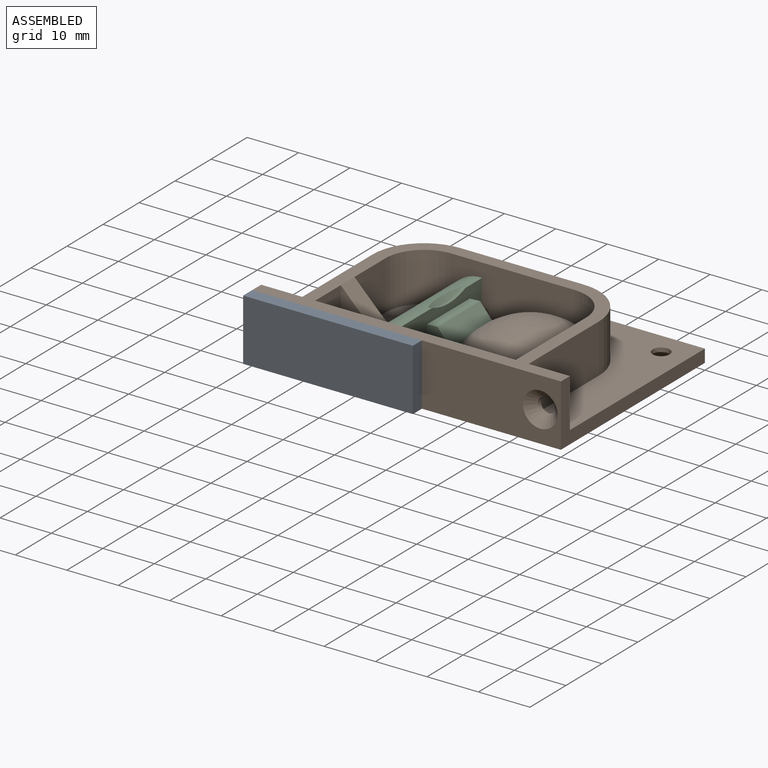
[diagram: assembled view]
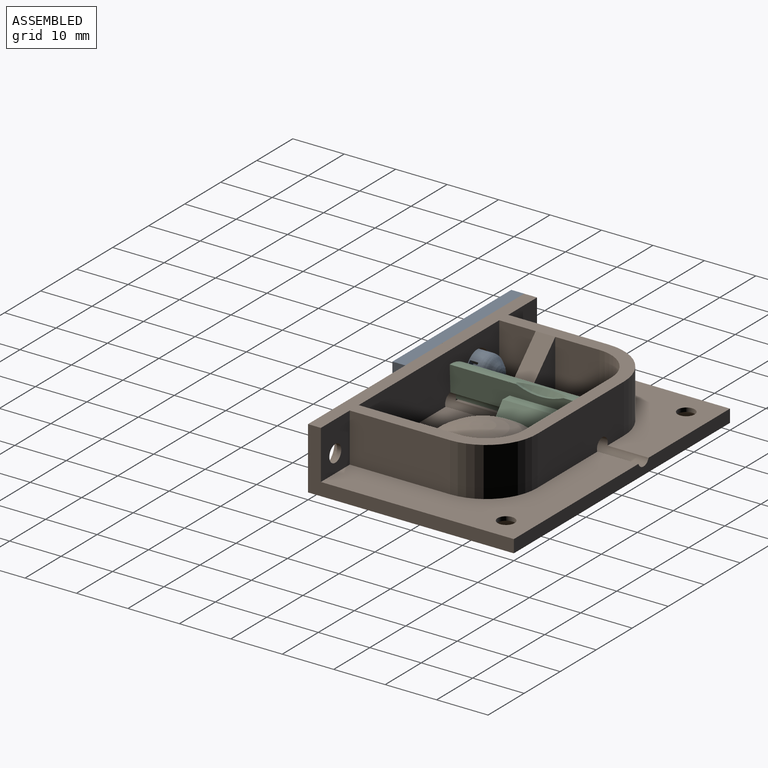
[diagram: assembled view, second angle]
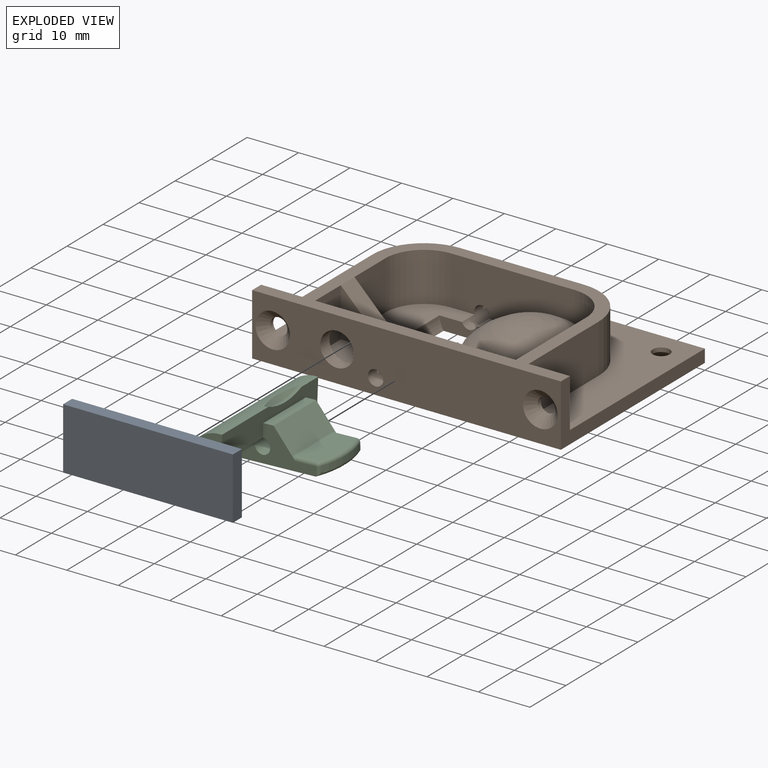
[diagram: exploded view]
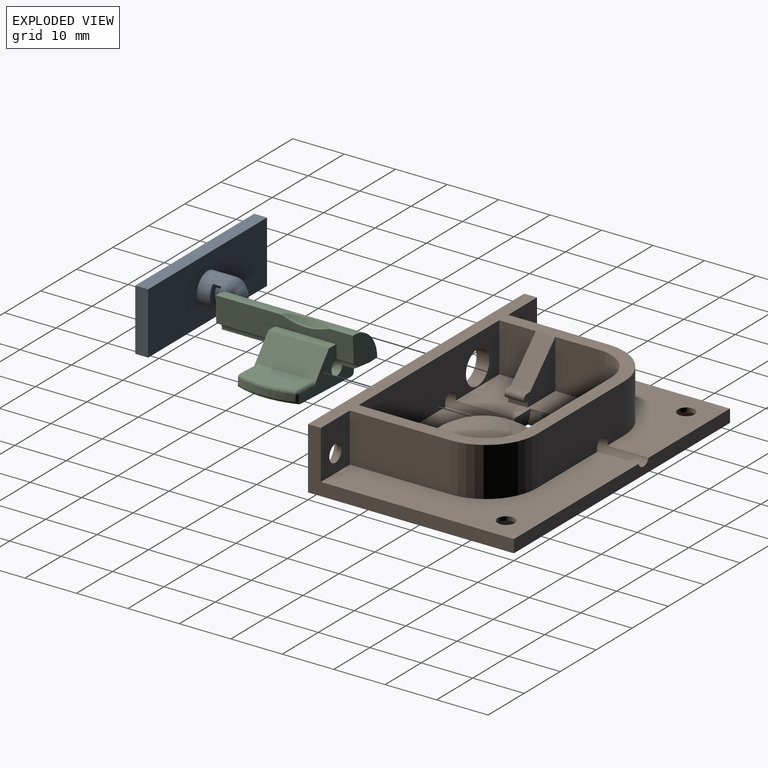
[diagram: exploded view, second angle]
ASSEMBLY  parts=3 mates=2
PART A: 16 faces, bbox 33x10x12 mm
  f0: plane 5.04x2.95mm, normal (0,1,0), area 7.2mm2, adj f8,f9,f14,f15
  f1: plane 12x2.5mm, normal (1,0,0), area 30mm2, adj f2,f4,f5,f6
  f2: plane 33x2.5mm, normal (0,0,1), area 82.5mm2, adj f1,f3,f5,f6
  f3: plane 12x2.5mm, normal (-1,0,0), area 30mm2, adj f2,f4,f5,f6
  f4: plane 33x2.5mm, normal (0,0,-1), area 82.5mm2, adj f1,f3,f5,f6
  f5: plane 33x12mm, normal (0,1,0), area 396mm2, adj f1,f2,f3,f4
  f6: plane 33x12mm, normal (0,-1,0), area 368.7mm2, adj f1,f2,f3,f4,f9
  f7: plane 5.04x2.95mm, normal (0,-1,0), area 7.2mm2, adj f8,f9,f14,f15
  f8: cylinder r=1.6mm len=2.73mm, axis (0,1,0), area 6mm2, adj f0,f7,f14,f15
  f9: cylinder r=2.95mm len=5.9mm, axis (0,1,0), area 73.8mm2, adj f0,f6,f7,f12,f14,f15
  f10: cone r=2.95mm half-angle=42.2deg, axis (0,1,0), area 15.7mm2, adj f12,f13
  f11: plane 0.23x0.23mm, normal (0,-1,0), area 0mm2, adj f13
  f12: torus R=0.95mm, axis (0,-1,0), area 25.7mm2, adj f9,f10
  f13: torus R=0.11mm, axis (0,1,0), area 9.4mm2, adj f10,f11
  f14: plane 1.6x0.95mm, normal (-0.71,0,-0.71), area 2.2mm2, adj f0,f7,f8,f9
  f15: plane 1.6x1.35mm, normal (-1,0,0), area 2.2mm2, adj f0,f7,f8,f9
PART B: 52 faces, bbox 60.1x40.1x12.1 mm
  f0: sphere r=12mm, area 330.4mm2, adj f23,f24,f25,f41,f50
  f1: plane 9.5x8.6mm, normal (1,0,0), area 81.7mm2, adj f2,f10,f35,f37
  f2: plane 27x12.09mm, normal (0,0,1), area 232.3mm2, adj f1,f18,f20,f21,f24,f25,f26,f27
  f3: plane 60x2.5mm, normal (0,1,0), area 147.9mm2, adj f4,f5,f8,f9,f12,f27
  f4: plane 37.5x34.59mm, normal (0,0,1), area 525.6mm2, adj f3,f9,f13,f14,f17,f27,f39,f44
  f5: plane 37.5x22.59mm, normal (0,0,1), area 429.6mm2, adj f3,f8,f15,f16,f17,f27,f38,f42
  f6: plane 6.42x3.5mm, normal (0,0,1), area 16.9mm2, adj f18,f22,f24,f27
  f7: plane 24.09x11.5mm, normal (0,0,1), area 176.5mm2, adj f19,f20,f22,f25,f26
  f8: plane 40x12mm, normal (-1,0,0), area 123.8mm2, adj f3,f5,f10,f11,f12,f15
  f9: plane 40x12mm, normal (1,0,0), area 123.8mm2, adj f3,f4,f10,f11,f12,f14
  f10: plane 60x32mm, normal (0,0,1), area 376.2mm2, adj f1,f8,f9,f11,f13,f14,f15,f16
  f11: plane 60x12mm, normal (0,-1,0), area 608.8mm2, adj f8,f9,f10,f12,f26,f28,f47,f49
  f12: plane 60x40mm, normal (0,0,-1), area 1796.1mm2, adj f3,f8,f9,f11,f24,f25,f29,f41
  f13: plane 19.5x9.5mm, normal (1,0,0), area 185.2mm2, adj f4,f10,f14,f39
  f14: plane 9.5x8mm, normal (0,1,0), area 67.4mm2, adj f4,f9,f10,f13,f46
  f15: plane 9.5x8mm, normal (0,1,0), area 67.4mm2, adj f5,f8,f10,f16,f48
  f16: plane 19.5x9.5mm, normal (-1,0,0), area 185.2mm2, adj f5,f10,f15,f38
  f17: plane 24x9.5mm, normal (0,1,0), area 223mm2, adj f4,f5,f10,f27,f38,f39
  f18: plane 24x9.5mm, normal (0,-1,0), area 195.1mm2, adj f2,f6,f10,f22,f27,f36,f37
  f19: plane 19.5x9.5mm, normal (-1,0,0), area 157.4mm2, adj f7,f10,f20,f22,f36
  f20: plane 39x9.5mm, normal (0,1,0), area 332.3mm2, adj f2,f7,f10,f19,f21,f26,f28
  f21: plane 9.5x7.1mm, normal (1,0,0), area 67.4mm2, adj f2,f10,f20,f34
  f22: sphere r=14.5mm, area 492.4mm2, adj f6,f7,f18,f19,f24,f25,f36,f40
  f23: plane 12x3.11mm, normal (0,0,-1), area 11.5mm2, adj f0,f24,f25,f40
  f24: plane 14.88x4.79mm, normal (0,-1,0), area 34.6mm2, adj f0,f2,f6,f12,f22,f23,f27,f29
  f25: plane 14.88x4.79mm, normal (0,1,0), area 34.6mm2, adj f0,f2,f7,f12,f22,f23,f26,f29
  f26: cylinder r=1.5mm len=14mm, axis (0,1,0), area 66mm2, adj f2,f7,f11,f20,f25
  f27: cylinder r=1.5mm len=14mm, axis (0,1,0), area 66mm2, adj f2,f3,f4,f5,f6,f17,f18,f24
  f28: cylinder r=3.25mm len=6.5mm, axis (0,-1,0), area 51.1mm2, adj f11,f20
  f29: cylinder r=5.83mm len=12mm, axis (0,-1,0), area 31.8mm2, adj f2,f12,f24,f25
  f30: cylinder r=5.83mm len=3.8mm, axis (0,1,0), area 4mm2, adj f2,f31,f34,f35
  f31: cylinder r=0.75mm len=3.8mm, axis (0,1,0), area 10mm2, adj f30,f32,f34,f35
  f32: plane 3.8x0.97mm, normal (0,0,1), area 3.7mm2, adj f31,f33,f34,f35
  f33: plane 7x7mm, normal (0.71,0,0.71), area 37.6mm2, adj f10,f32,f34,f35
  f34: plane 9.5x8.72mm, normal (0,-1,0), area 45mm2, adj f2,f21,f30,f31,f32,f33
  f35: plane 9.5x8.72mm, normal (0,1,0), area 45mm2, adj f1,f2,f30,f31,f32,f33
  f36: cylinder r=7.5mm len=7.5mm, axis (0,0,-1), area 75.6mm2, adj f10,f18,f19,f22
  f37: cylinder r=7.5mm len=9.5mm, axis (0,0,1), area 111.9mm2, adj f1,f2,f10,f18
  f38: cylinder r=10mm len=10mm, axis (0,0,-1), area 149.2mm2, adj f5,f10,f16,f17
  f39: cylinder r=10mm len=10mm, axis (0,0,1), area 149.2mm2, adj f4,f10,f13,f17
  f40: cone r=10.93mm half-angle=24.4deg, axis (0,0,1), area 25.8mm2, adj f22,f23,f24,f25
  f41: torus R=11.45mm, axis (0,0,1), area 44.9mm2, adj f0,f12,f24,f25
  f42: cylinder r=1.65mm len=3.3mm, axis (0,0,-1), area 8.2mm2, adj f5,f43
  f43: cone r=1.65mm half-angle=45deg, axis (0,0,-1), area 38.1mm2, adj f12,f42
  f44: cylinder r=1.65mm len=3.3mm, axis (0,0,-1), area 8.2mm2, adj f4,f45
  f45: cone r=1.65mm half-angle=45deg, axis (0,0,-1), area 38.1mm2, adj f12,f44
  f46: cylinder r=1.65mm len=3.3mm, axis (0,-1,0), area 8.2mm2, adj f14,f47
  f47: cone r=1.65mm half-angle=45deg, axis (0,-1,0), area 38.1mm2, adj f11,f46
  f48: cylinder r=1.65mm len=3.3mm, axis (0,-1,0), area 8.2mm2, adj f15,f49
  f49: cone r=1.65mm half-angle=45deg, axis (0,-1,0), area 38.1mm2, adj f11,f48
  f50: cylinder r=6.5mm len=13mm, axis (0,0,-1), area 110.8mm2, adj f0,f51
  f51: plane 13x13mm, normal (0,0,-1), area 132.7mm2, adj f50
PART C: 43 faces, bbox 20.2x26.8x10.5 mm
  f0: plane 26.7x4.98mm, normal (1,0,-0.08), area 96.7mm2, adj f1,f5,f7,f9,f11,f12,f20,f37
  f1: cylinder r=6.5mm len=26.7mm, axis (0,-1,0), area 239.4mm2, adj f0,f2,f11,f12,f14,f15,f16,f17
  f2: plane 3.37x0.93mm, normal (-0.7,0,-0.71), area 3.8mm2, adj f1,f10,f14,f31
  f3: plane 10.4x5.46mm, normal (0,0,1), area 53.6mm2, adj f19,f21,f23,f24
  f4: plane 11.8x1.93mm, normal (-1,0,0), area 22.8mm2, adj f5,f7,f10,f29
  f5: plane 15.13x7.09mm, normal (0,-1,0), area 49.1mm2, adj f0,f4,f8,f9,f10,f19,f20,f23
  f6: cylinder r=15.55mm len=10.89mm, axis (0,0,-1), area 12.2mm2, adj f24,f25,f27,f28
  f7: plane 15.13x7.09mm, normal (0,1,0), area 49.1mm2, adj f0,f4,f8,f9,f10,f19,f20,f21
  f8: plane 15.36x11.8mm, normal (0,0,-1), area 176.6mm2, adj f5,f7,f27,f29
  f9: cylinder r=1.5mm len=26.7mm, axis (0,1,0), area 149.4mm2, adj f0,f5,f7,f10,f11,f12,f35
  f10: plane 25.8x4.13mm, normal (0.08,0,-1), area 62.3mm2, adj f2,f4,f5,f7,f9,f12,f13,f14
  f11: plane 7.01x6.1mm, normal (0,1,0), area 30mm2, adj f0,f1,f9,f17,f35
  f12: plane 7.01x6.93mm, normal (0,-1,0), area 34.2mm2, adj f0,f1,f9,f10,f18
  f13: cylinder r=4.7mm len=4.16mm, axis (0,-1,0), area 11.3mm2, adj f10,f14,f15,f16
  f14: bspline ~5.94x4.09mm, area 10.1mm2, adj f1,f2,f10,f13,f16
  f15: bspline ~5.94x4.09mm, area 10.1mm2, adj f1,f10,f13,f16,f18
  f16: plane 3x1.46mm, normal (-0.81,0,-0.59), area 4.8mm2, adj f1,f13,f14,f15
  f17: plane 15.8x0.86mm, normal (-0.7,0,-0.71), area 18.6mm2, adj f1,f10,f11,f32,f35
  f18: plane 1.17x0.93mm, normal (-0.7,0,-0.71), area 1.3mm2, adj f1,f10,f12,f15
  f19: plane 11.8x5.29mm, normal (0.8,0,0.6), area 68.2mm2, adj f3,f5,f7,f20,f21,f23
  f20: plane 11.8x2mm, normal (0,0,1), area 23.6mm2, adj f0,f5,f7,f19
  f21: cylinder r=0.7mm len=4.52mm, axis (1,0,0), area 4.8mm2, adj f3,f7,f19,f22
  f22: sphere r=0.7mm, area 0.6mm2, adj f21,f24,f25
  f23: cylinder r=0.7mm len=4.52mm, axis (-1,0,0), area 4.8mm2, adj f3,f5,f19,f26
  f24: torus R=14.85mm, axis (0,0,1), area 12mm2, adj f3,f6,f22,f26
  f25: cylinder r=0.7mm len=1.75mm, axis (0,0,-1), area 1.2mm2, adj f6,f7,f22,f27
  f26: sphere r=0.7mm, area 0.6mm2, adj f23,f24,f28
  f27: torus R=14.85mm, axis (0,0,1), area 13mm2, adj f5,f6,f7,f8,f25,f28
  f28: cylinder r=0.7mm len=1.75mm, axis (0,0,-1), area 1.2mm2, adj f5,f6,f26,f27
  f29: cylinder r=0.7mm len=11.8mm, axis (0,-1,0), area 13mm2, adj f4,f5,f7,f8
  f30: plane 3.8x0.65mm, normal (-0.01,0,-1), area 2.5mm2, adj f1,f31,f32,f34
  f31: plane 2.47x1.71mm, normal (0,1,0), area 3.1mm2, adj f1,f2,f10,f30,f33,f34,f36
  f32: plane 2.47x1.71mm, normal (0,-1,0), area 3.1mm2, adj f1,f10,f17,f30,f33,f34,f36
  f33: cylinder r=5.13mm len=3.8mm, axis (0,1,0), area 2.9mm2, adj f31,f32,f34,f36
  f34: cylinder r=0.75mm len=3.8mm, axis (0,1,0), area 7.2mm2, adj f30,f31,f32,f33
  f35: plane 5.26x1.29mm, normal (0.05,0.71,-0.71), area 5.9mm2, adj f9,f10,f11,f17
  f36: plane 3.8x0.32mm, normal (-0.67,0,-0.74), area 1.7mm2, adj f10,f31,f32,f33
  f37: cone r=10.93mm half-angle=24.4deg, axis (-0.97,0,0.25), area 8mm2, adj f0,f1,f38
  f38: sphere r=14.5mm, area 8.6mm2, adj f1,f37
  f39: plane 0.19x0.13mm, normal (0,-1,0), area 0mm2, adj f0,f1,f40
  f40: sphere r=14.5mm, area 0mm2, adj f0,f1,f39
  f41: sphere r=14.5mm, area 0mm2, adj f0,f1,f42
  f42: plane 0.19x0.13mm, normal (0,1,0), area 0mm2, adj f0,f1,f41
PLACE A rot(axis=(0,0,1),180deg) t=(33,-80,0)mm
PLACE B at identity fixed
PLACE C rot(axis=(0,-1,0),2.3deg) t=(0.14,0,-0.97)mm
MATE revolute B.f26 <-> C.f1  axis (0,-1,0) through (24,-20,3)mm
MATE fastened B.f28 <-> A.f8  axis (0,-1,0) through (16.5,-40,6)mm
